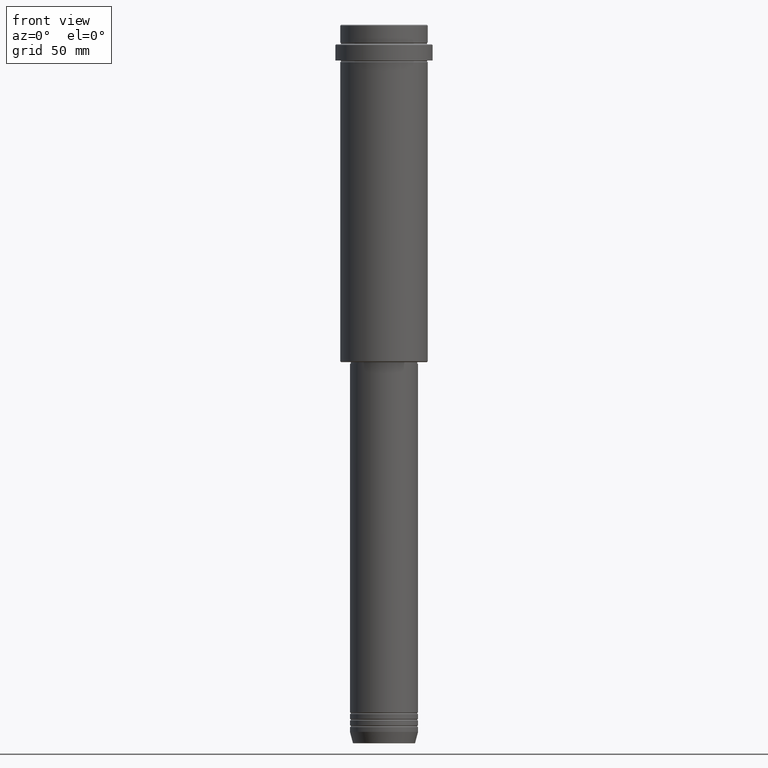
[diagram: clean part render]
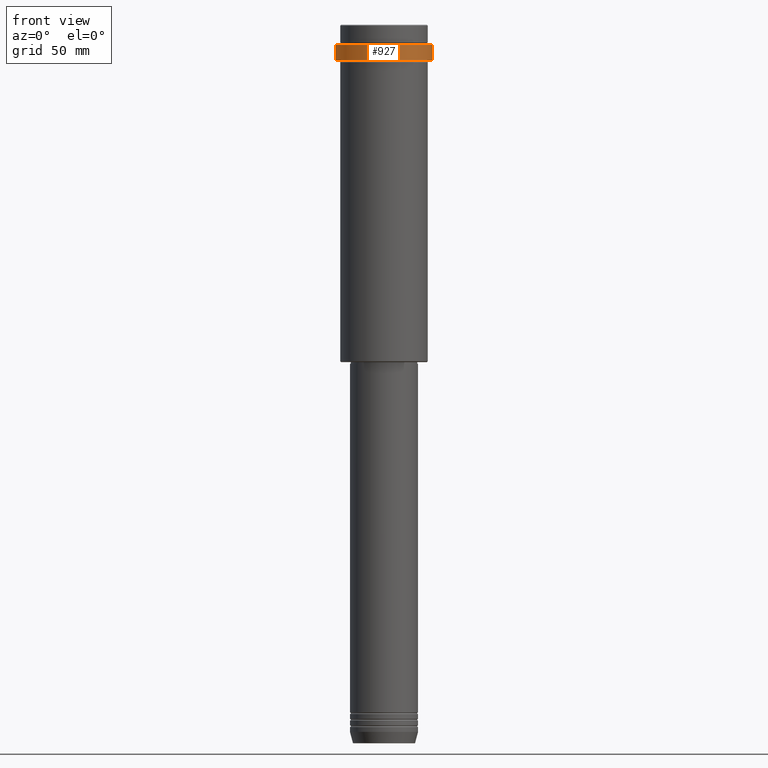
[diagram: same view with one face highlighted and labeled with its STEP entity id]
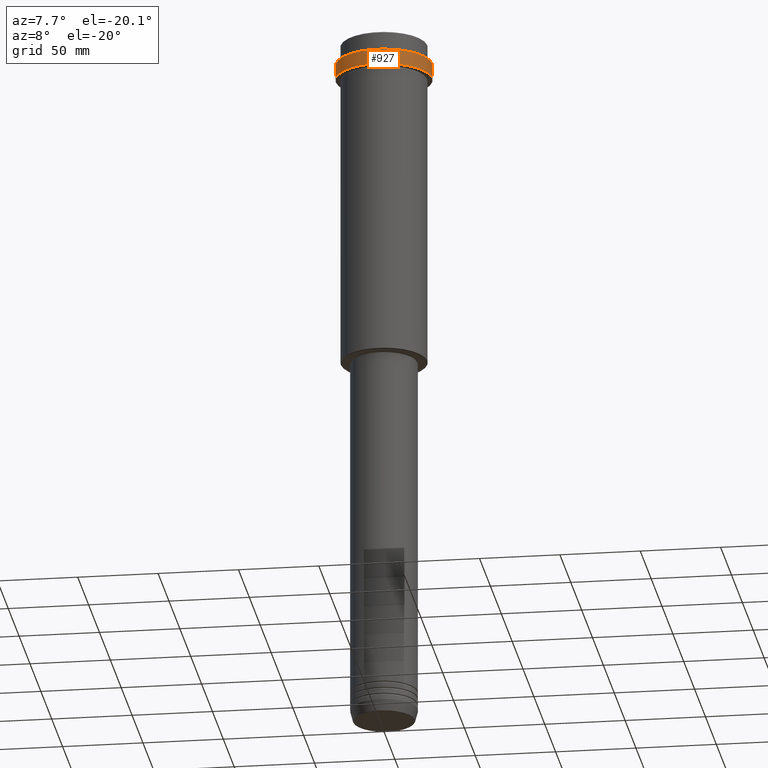
[diagram: same view with one face highlighted and labeled with its STEP entity id]
A machine part, front view. The second image highlights one B-rep face of the part: STEP entity #927.
A second angle (auxiliary view) of the same face is appended — the face is thin or edge-on in the first view.
In plain terms, the highlighted cylindrical surface (partial cylindrical patch) has radius 30 mm, axis along (-0, -0, 1).
Its self-contained STEP definition (entity closure, byte-faithful):
#14 = LINE ( 'NONE', #338, #1149 ) ;
#35 = CARTESIAN_POINT ( 'NONE',  ( 0.000000000000000000, 0.000000000000000000, -12.50000000000000888 ) ) ;
#69 = CYLINDRICAL_SURFACE ( 'NONE', #510, 30.00000000000000000 ) ;
#70 = CIRCLE ( 'NONE', #556, 29.99999999999999645 ) ;
#143 = EDGE_CURVE ( 'NONE', #550, #349, #14, .T. ) ;
#183 = DIRECTION ( 'NONE',  ( 1.000000000000000000, 0.000000000000000000, 0.000000000000000000 ) ) ;
#198 = CARTESIAN_POINT ( 'NONE',  ( 0.000000000000000000, 0.000000000000000000, 0.000000000000000000 ) ) ;
#297 = DIRECTION ( 'NONE',  ( 1.000000000000000000, 0.000000000000000000, 0.000000000000000000 ) ) ;
#302 = CARTESIAN_POINT ( 'NONE',  ( -30.00000000000000000, 3.673940397442059178E-15, -12.50000000000000888 ) ) ;
#319 = CARTESIAN_POINT ( 'NONE',  ( -29.99999999999999645, 3.673940397442058389E-15, -22.00000000000000355 ) ) ;
#337 = AXIS2_PLACEMENT_3D ( 'NONE', #35, #1391, #183 ) ;
#338 = CARTESIAN_POINT ( 'NONE',  ( 30.00000000000000000, 0.000000000000000000, 0.000000000000000000 ) ) ;
#344 = CARTESIAN_POINT ( 'NONE',  ( 0.000000000000000000, 0.000000000000000000, -22.00000000000000355 ) ) ;
#349 = VERTEX_POINT ( 'NONE', #819 ) ;
#362 = EDGE_LOOP ( 'NONE', ( #493, #1136, #650, #664 ) ) ;
#440 = CARTESIAN_POINT ( 'NONE',  ( 29.99999999999999645, 0.000000000000000000, -22.00000000000000355 ) ) ;
#493 = ORIENTED_EDGE ( 'NONE', *, *, #586, .F. ) ;
#510 = AXIS2_PLACEMENT_3D ( 'NONE', #198, #960, #297 ) ;
#539 = FACE_OUTER_BOUND ( 'NONE', #362, .T. ) ;
#550 = VERTEX_POINT ( 'NONE', #440 ) ;
#556 = AXIS2_PLACEMENT_3D ( 'NONE', #344, #1118, #985 ) ;
#586 = EDGE_CURVE ( 'NONE', #979, #1381, #1215, .T. ) ;
#609 = EDGE_CURVE ( 'NONE', #979, #550, #70, .T. ) ;
#650 = ORIENTED_EDGE ( 'NONE', *, *, #143, .T. ) ;
#664 = ORIENTED_EDGE ( 'NONE', *, *, #1226, .T. ) ;
#677 = CARTESIAN_POINT ( 'NONE',  ( -30.00000000000000000, 3.673940397442059178E-15, 0.000000000000000000 ) ) ;
#731 = CIRCLE ( 'NONE', #337, 30.00000000000000000 ) ;
#819 = CARTESIAN_POINT ( 'NONE',  ( 30.00000000000000000, 0.000000000000000000, -12.50000000000000888 ) ) ;
#927 = ADVANCED_FACE ( 'NONE', ( #539 ), #69, .T. ) ;
#960 = DIRECTION ( 'NONE',  ( -0.000000000000000000, -0.000000000000000000, 1.000000000000000000 ) ) ;
#979 = VERTEX_POINT ( 'NONE', #319 ) ;
#985 = DIRECTION ( 'NONE',  ( 1.000000000000000000, 0.000000000000000000, 0.000000000000000000 ) ) ;
#996 = DIRECTION ( 'NONE',  ( -0.000000000000000000, -0.000000000000000000, 1.000000000000000000 ) ) ;
#1060 = VECTOR ( 'NONE', #1342, 1000.000000000000000 ) ;
#1118 = DIRECTION ( 'NONE',  ( -0.000000000000000000, -0.000000000000000000, 1.000000000000000000 ) ) ;
#1136 = ORIENTED_EDGE ( 'NONE', *, *, #609, .T. ) ;
#1149 = VECTOR ( 'NONE', #996, 1000.000000000000000 ) ;
#1215 = LINE ( 'NONE', #677, #1060 ) ;
#1226 = EDGE_CURVE ( 'NONE', #349, #1381, #731, .T. ) ;
#1342 = DIRECTION ( 'NONE',  ( -0.000000000000000000, -0.000000000000000000, 1.000000000000000000 ) ) ;
#1381 = VERTEX_POINT ( 'NONE', #302 ) ;
#1391 = DIRECTION ( 'NONE',  ( 0.000000000000000000, 0.000000000000000000, -1.000000000000000000 ) ) ;